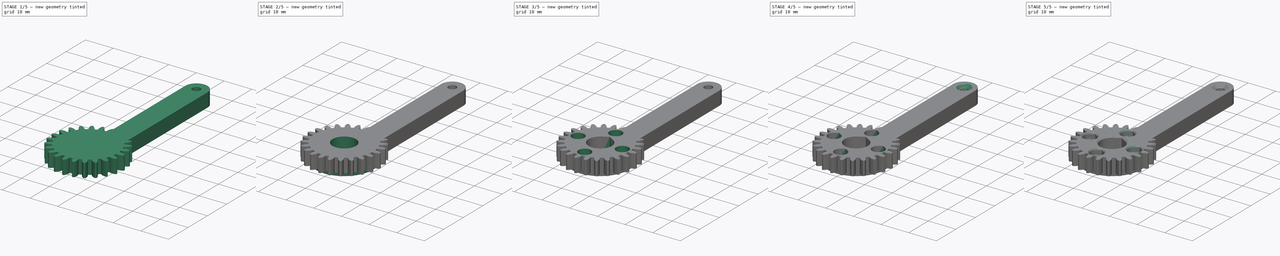
[diagram: build sequence overview — one tinted view per stage of 5, left to right]
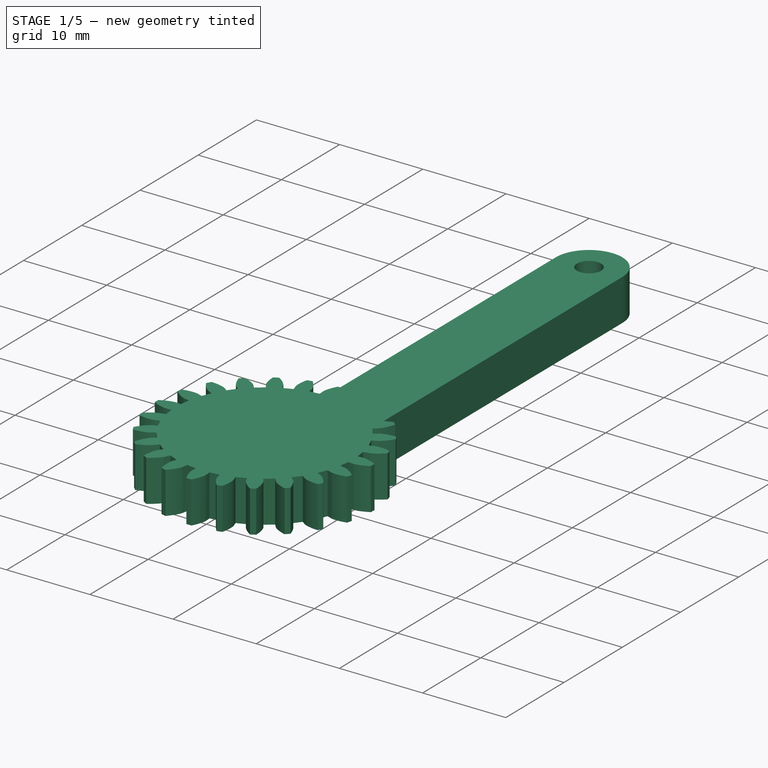
[diagram: stage 1 of 5 — iso view after this stage's code; geometry added in this stage tinted green]
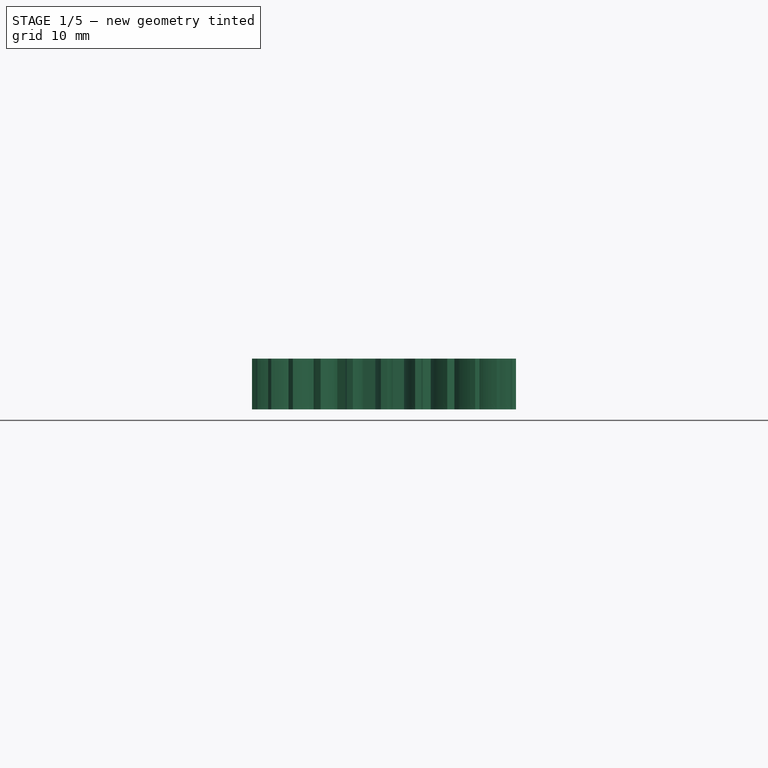
[diagram: stage 1 of 5 — front view after this stage's code; geometry added in this stage tinted green]
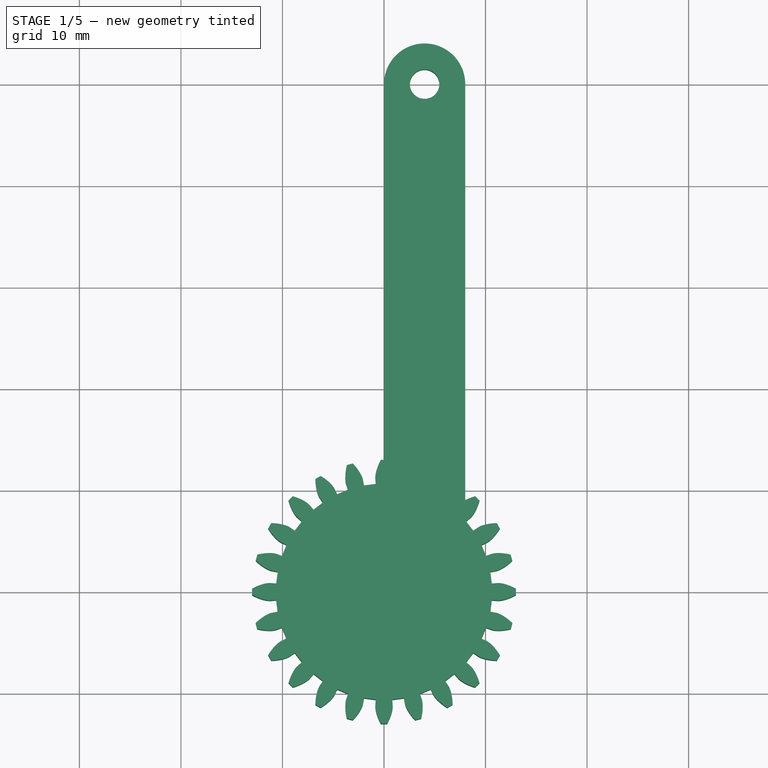
[diagram: stage 1 of 5 — top view after this stage's code; geometry added in this stage tinted green]
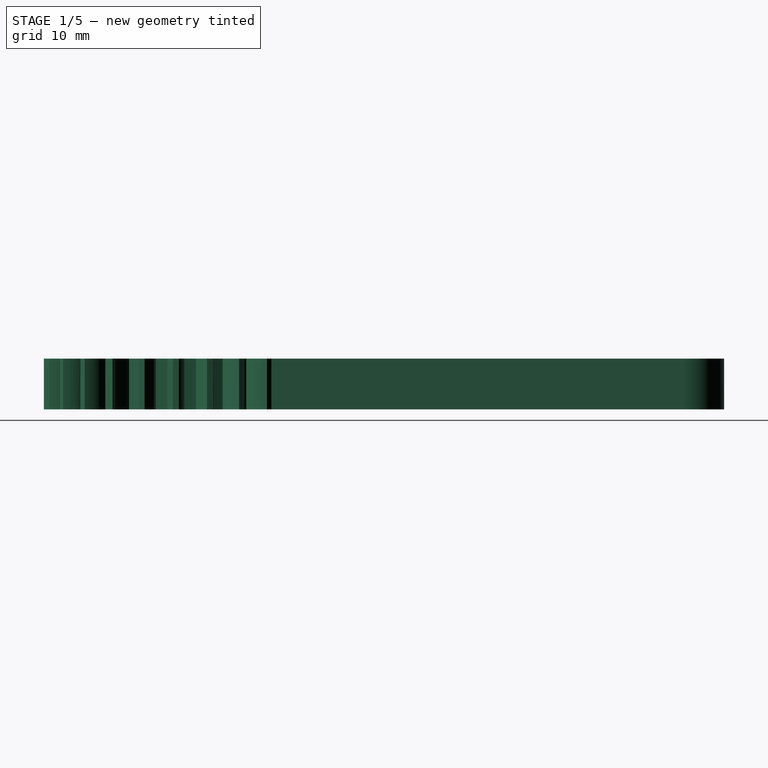
[diagram: stage 1 of 5 — right view after this stage's code; geometry added in this stage tinted green]
FCSTD DOCUMENT  (FreeCAD 1.0R39109 (Git))
Label: gear_servo_2
License: All rights reserved
LicenseURL: https://en.wikipedia.org/wiki/All_rights_reserved
objects: Sketcher::SketchObject×10, PartDesign::Chamfer×6, PartDesign::Hole×4, PartDesign::Pocket×4, PartDesign::Pad×2, Part::FeaturePython×1, PartDesign::FeatureBase×1, PartDesign::Body×1
note: 72 computed .brp shape members not serialized (recipe doc carries the construction recipe); baked Part::Feature solids carry a one-line shape summary decoded from their .brp

FEATURE [Part::FeaturePython] InvoluteGear  # WARN: FeaturePython — macro-defined, semantics opaque (R4)
  AttacherType = Attacher::AttachEngine3D
  addendum_diameter = 26
  angular_backlash = 0.498224
  axle_hole = false
  axle_holesize = 10
  backlash = 0.1
  clearance = 0.35
  double_helix = false
  head = 0
  head_fillet = 0
  height = 5
  helix_angle = 0
  module = 1
  num_teeth = 24
  numpoints = 20
  offset_hole = false
  offset_holeoffset = 10
  offset_holesize = 10
  pitch_diameter = 24
  pressure_angle = 20
  properties_from_tool = false
  reversed_backlash = false
  root_diameter = 21.3
  root_fillet = 0
  shift = 0
  simple = false
  transverse_pitch = 3.14159
  traverse_module = 1
  undercut = false
  version = 1.3.0
  expr: angular_backlash = backlash / pitch_diameter * 360 ° / pi
FEATURE [PartDesign::FeatureBase] BaseFeature
  BaseFeature = -> InvoluteGear
  Suppressed = false
FEATURE [Sketcher::SketchObject] Sketch
  ArcFitTolerance = 1e-06
  AttachmentSupport = -> [BaseFeature]
  FullyConstrained = true
  MakeInternals = false
  MapMode = 5
  Placement = pos=(0,0,5) rot=(0,0,1;0rad)
  sketch-geometry (9):
    g0: Circle [constr] CenterX=0 CenterY=0 CenterZ=0 NormalX=0 NormalY=0 NormalZ=1 AngleXU=0 Radius=12
    g1: LineSegment [constr] StartX=0 StartY=0 StartZ=0 EndX=12 EndY=0 EndZ=0
    g2: Circle [constr] CenterX=12 CenterY=0 CenterZ=0 NormalX=0 NormalY=0 NormalZ=1 AngleXU=0 Radius=8
    g3: LineSegment [constr] StartX=0 StartY=0 StartZ=0 EndX=4 EndY=0 EndZ=0
    g4: LineSegment [constr] StartX=4 StartY=0 StartZ=0 EndX=4 EndY=50 EndZ=0
    g5: ArcOfCircle CenterX=4 CenterY=0 CenterZ=0 NormalX=0 NormalY=0 NormalZ=1 AngleXU=0 Radius=4 StartAngle=3.14159 EndAngle=6.28319
    g6: ArcOfCircle CenterX=4 CenterY=50 CenterZ=0 NormalX=0 NormalY=0 NormalZ=1 AngleXU=0 Radius=4 StartAngle=0 EndAngle=3.14159
    g7: LineSegment StartX=0 StartY=-1.3e-15 StartZ=0 EndX=0 EndY=50 EndZ=0
    g8: LineSegment StartX=8 StartY=-1e-15 StartZ=0 EndX=8 EndY=50 EndZ=0
  constraints (21):
    c: Diameter(g0) = 24
    c: Coincident(g0,g-1)
    c: Coincident(g1,g0)
    c: PointOnObject(g1,g0)
    c: Horizontal(g1)
    c: Diameter(g2) = 16
    c: Coincident(g2,g1)
    c: Coincident(g3,g0)
    c: PointOnObject(g3,g2)
    c: Horizontal(g3)
    c: Distance(g4) = 50
    c: Coincident(g4,g3)
    c: Vertical(g4)
    c: Tangent(g5,g7) = 1.5708
    c: Tangent(g5,g8) = -1.5708
    c: Tangent(g6,g7) = 1.5708
    c: Tangent(g6,g8) = -1.5708
    c: Equal(g5,g6)
    c: Radius(g5) = 4
    c: Coincident(g5,g3)
    c: Coincident(g6,g4)
FEATURE [PartDesign::Pad] Pad
  BaseFeature = -> BaseFeature
  Direction = (0,0,1)
  Length = 10
  Length2 = 10
  Profile = -> Sketch
  ReferenceAxis = -> Sketch [N_Axis]
  Refine = true
  Reversed = true
  Suppressed = false
  Type = 3
  UpToFace = -> BaseFeature [Face145]
FEATURE [Sketcher::SketchObject] Sketch001
  ArcFitTolerance = 1e-06
  AttachmentSupport = -> [Pad]
  ExternalGeometry = -> [Pad]
  FullyConstrained = true
  MakeInternals = false
  MapMode = 5
  Placement = pos=(0,0,5) rot=(0,0,1;0rad)
  sketch-geometry (1):
    g0: Circle CenterX=4 CenterY=50 CenterZ=0 NormalX=0 NormalY=0 NormalZ=1 AngleXU=0 Radius=1
  constraints (2):
    c: Diameter(g0) = 2
    c: Coincident(g0,g-3)
FEATURE [PartDesign::Hole] Hole
  BaseFeature = -> Pad
  CustomThreadClearance = 0
  Depth = 25
  DepthType = 0
  Diameter = 2.9
  DrillForDepth = false
  DrillPoint = 1
  DrillPointAngle = 118
  HoleCutCountersinkAngle = 90
  HoleCutCustomValues = false
  HoleCutDepth = 0
  HoleCutDiameter = 6.1
  HoleCutType = 0
  ModelThread = false
  Profile = -> Sketch001
  Refine = true
  Suppressed = false
  Tapered = false
  TaperedAngle = 90
  TeardropAngle = 120
  TeardropRotation = 90
  ThreadClass = 0
  ThreadDepth = 25
  ThreadDepthType = 0
  ThreadDirection = 0
  ThreadFit = 0
  ThreadSize = 8
  ThreadType = 1
  Threaded = false
  UseCustomThreadClearance = false
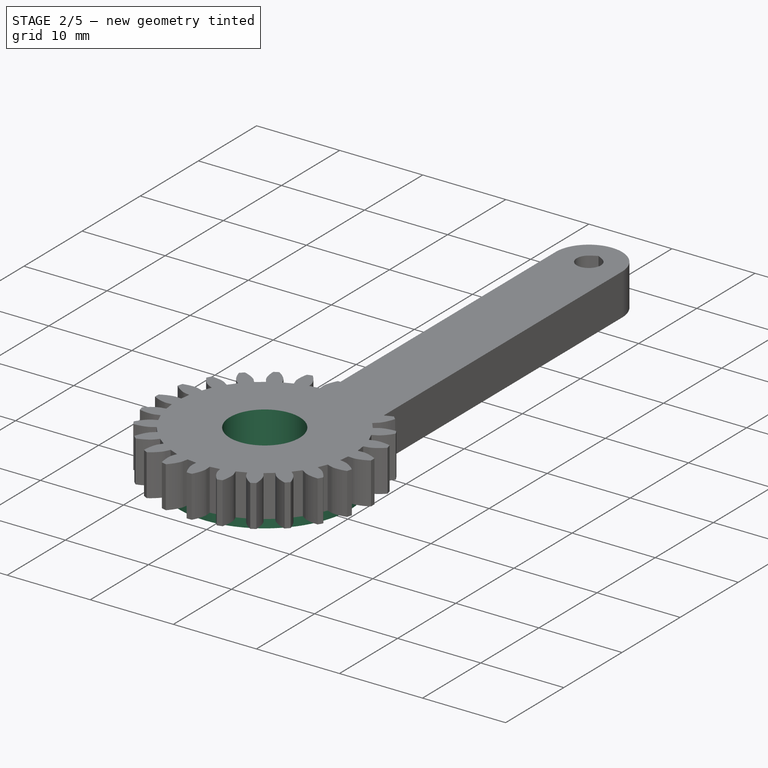
[diagram: stage 2 of 5 — iso view after this stage's code; geometry added in this stage tinted green]
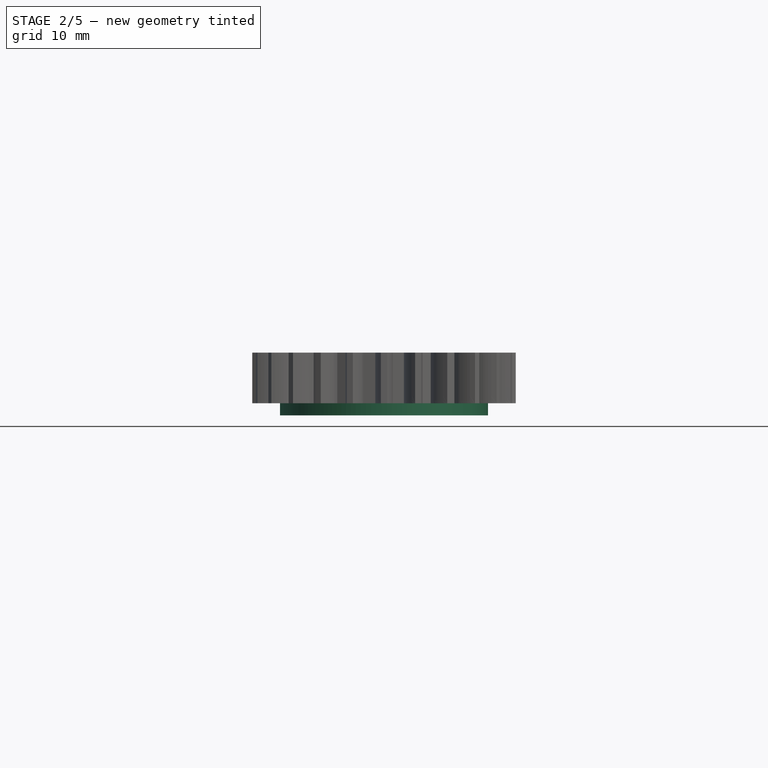
[diagram: stage 2 of 5 — front view after this stage's code; geometry added in this stage tinted green]
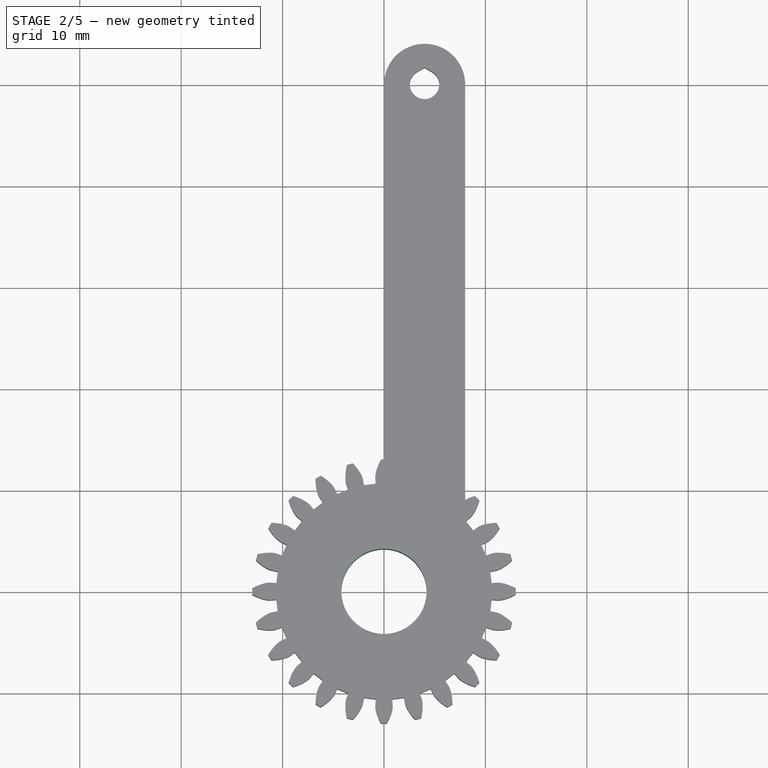
[diagram: stage 2 of 5 — top view after this stage's code; geometry added in this stage tinted green]
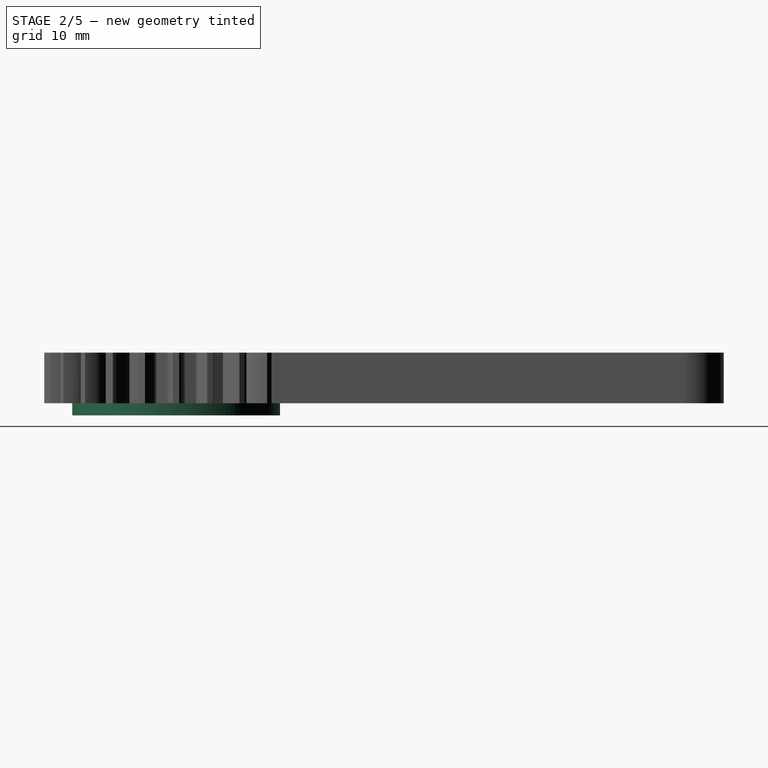
[diagram: stage 2 of 5 — right view after this stage's code; geometry added in this stage tinted green]
FEATURE [Sketcher::SketchObject] Sketch001_Teardrops
  ArcFitTolerance = 1e-06
  AttachmentSupport = -> [Sketch001]
  FullyConstrained = true
  MakeInternals = false
  MapMode = 2
  Placement = pos=(0,0,5) rot=(0,0,1;0rad)
  expr: Constraints[5] = Sketch001.Geometry[0].Center.x * 1 mm
  expr: Constraints[6] = Sketch001.Geometry[0].Center.y * 1 mm
  expr: Constraints[7] = Hole.Diameter
  expr: Constraints[8] = Hole.TeardropAngle
  expr: Constraints[9] = Hole.TeardropRotation
  sketch-geometry (4):
    g0: ArcOfCircle CenterX=4 CenterY=50 CenterZ=0 NormalX=0 NormalY=0 NormalZ=1 AngleXU=0 Radius=1.45 StartAngle=2.0944 EndAngle=7.33038
    g1: LineSegment StartX=3.275 StartY=51.2557 StartZ=0 EndX=4 EndY=51.6743 EndZ=0
    g2: LineSegment StartX=4.725 StartY=51.2557 StartZ=0 EndX=4 EndY=51.6743 EndZ=0
    g3: LineSegment [constr] StartX=4 StartY=50 StartZ=0 EndX=4 EndY=51.6743 EndZ=0
  constraints (10):
    c: Coincident(g1,g2)
    c: Coincident(g1,g3)
    c: Coincident(g0,g3)
    c: Tangent(g0,g1) = 1.5708
    c: Tangent(g0,g2) = -1.5708
    c: DistanceX(g0) = 4
    c: DistanceY(g0) = 50
    c: Diameter(g0) = 2.9
    c: Angle(g1,g2) = 2.0944
    c: Angle(g3) = 1.5708
FEATURE [PartDesign::Pocket] Hole_Teardrops
  BaseFeature = -> Hole
  Direction = (0,0,-1)
  Length = 25
  Length2 = 5
  Profile = -> Sketch001_Teardrops
  ReferenceAxis = -> Sketch001_Teardrops [N_Axis]
  Refine = true
  Suppressed = false
  Type = 0
  expr: Length = Hole.Depth
  expr: Type = Hole.DepthType
FEATURE [Sketcher::SketchObject] Sketch002
  ArcFitTolerance = 1e-06
  AttachmentSupport = -> [Hole_Teardrops]
  FullyConstrained = true
  MakeInternals = false
  MapMode = 5
  Placement = pos=(0,0,0) rot=(1,0,0;3.14159rad)
  sketch-geometry (1):
    g0: Circle CenterX=0 CenterY=0 CenterZ=0 NormalX=0 NormalY=0 NormalZ=1 AngleXU=0 Radius=10.25
  constraints (2):
    c: Diameter(g0) = 20.5
    c: Coincident(g0,g-1)
FEATURE [PartDesign::Pad] Pad001
  BaseFeature = -> Hole_Teardrops
  Direction = (0,0,-1)
  Length = 1.2
  Length2 = 10
  Profile = -> Sketch002
  ReferenceAxis = -> Sketch002 [N_Axis]
  Refine = true
  Suppressed = false
  Type = 0
FEATURE [Sketcher::SketchObject] Sketch003
  ArcFitTolerance = 1e-06
  AttachmentSupport = -> [Pad001]
  FullyConstrained = true
  MakeInternals = false
  MapMode = 5
  Placement = pos=(0,0,5) rot=(0,0,1;0rad)
  sketch-geometry (1):
    g0: Circle CenterX=0 CenterY=0 CenterZ=0 NormalX=0 NormalY=0 NormalZ=1 AngleXU=0 Radius=4
  constraints (2):
    c: Diameter(g0) = 8
    c: Coincident(g0,g-1)
FEATURE [PartDesign::Hole] Hole001
  BaseFeature = -> Pad001
  CustomThreadClearance = 0
  Depth = 25
  DepthType = 0
  Diameter = 8.4
  DrillForDepth = false
  DrillPoint = 1
  DrillPointAngle = 118
  HoleCutCountersinkAngle = 90
  HoleCutCustomValues = false
  HoleCutDepth = 0
  HoleCutDiameter = 6.1
  HoleCutType = 0
  ModelThread = false
  Profile = -> Sketch003
  Refine = true
  Suppressed = false
  Tapered = false
  TaperedAngle = 90
  TeardropAngle = 120
  TeardropRotation = 90
  ThreadClass = 0
  ThreadDepth = 25
  ThreadDepthType = 0
  ThreadDirection = 0
  ThreadFit = 1
  ThreadSize = 16
  ThreadType = 1
  Threaded = false
  UseCustomThreadClearance = false
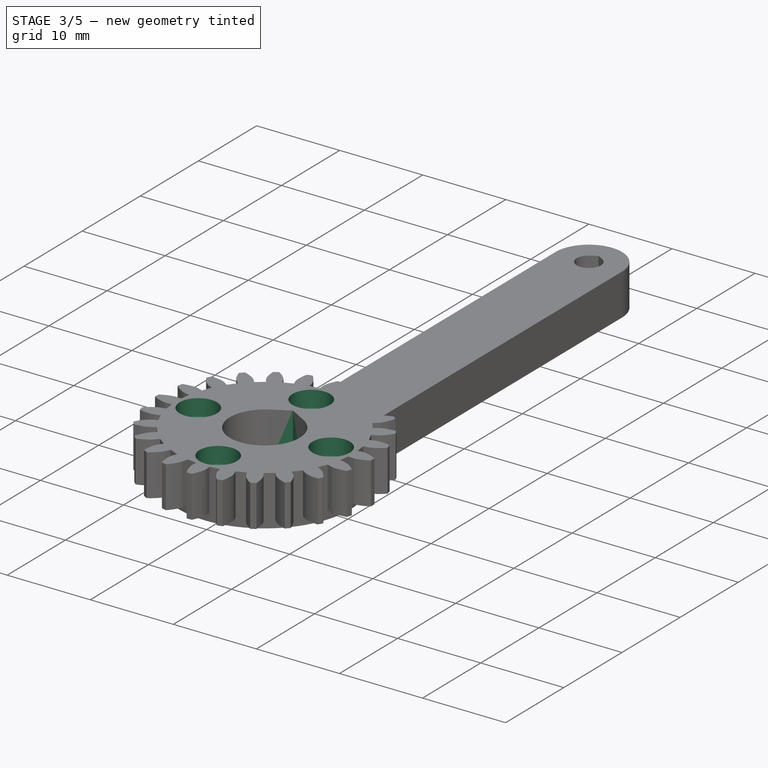
[diagram: stage 3 of 5 — iso view after this stage's code; geometry added in this stage tinted green]
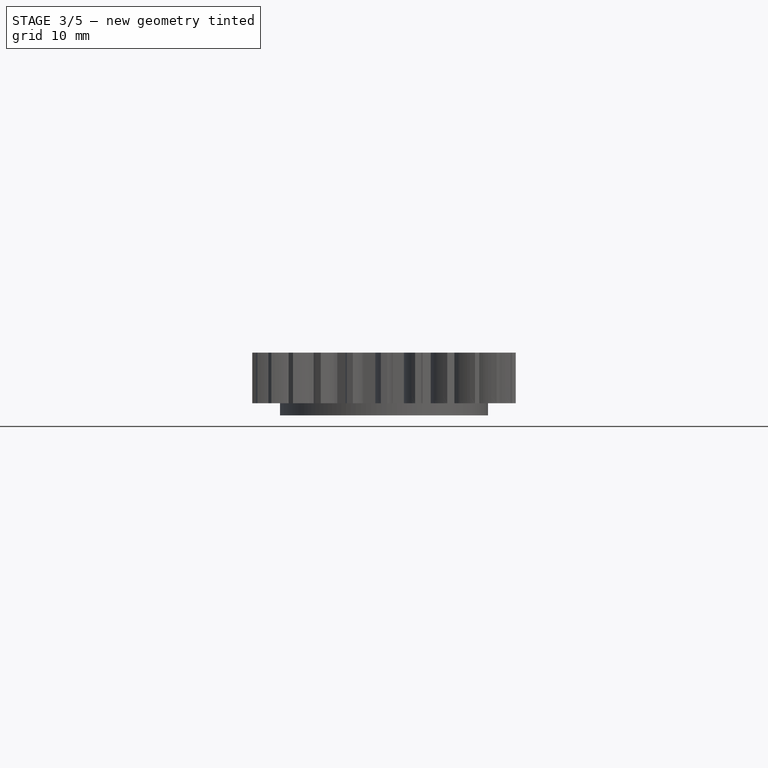
[diagram: stage 3 of 5 — front view after this stage's code; geometry added in this stage tinted green]
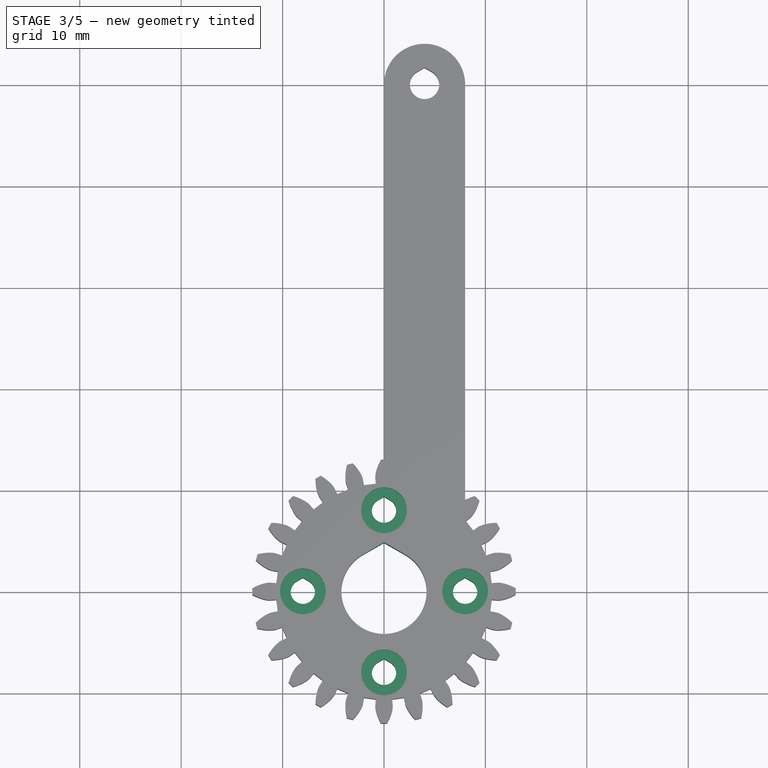
[diagram: stage 3 of 5 — top view after this stage's code; geometry added in this stage tinted green]
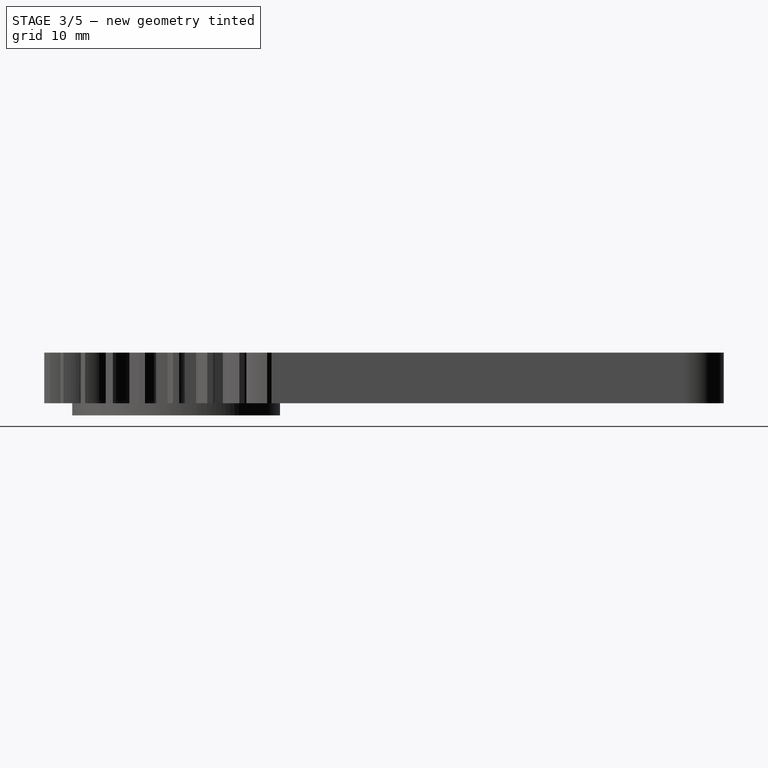
[diagram: stage 3 of 5 — right view after this stage's code; geometry added in this stage tinted green]
FEATURE [Sketcher::SketchObject] Sketch003_Teardrops
  ArcFitTolerance = 1e-06
  AttachmentSupport = -> [Sketch003]
  FullyConstrained = true
  MakeInternals = false
  MapMode = 2
  Placement = pos=(0,0,5) rot=(0,0,1;0rad)
  expr: Constraints[5] = Sketch003.Geometry[0].Center.x * 1 mm
  expr: Constraints[6] = Sketch003.Geometry[0].Center.y * 1 mm
  expr: Constraints[7] = Hole001.Diameter
  expr: Constraints[8] = Hole001.TeardropAngle
  expr: Constraints[9] = Hole001.TeardropRotation
  sketch-geometry (4):
    g0: ArcOfCircle CenterX=0 CenterY=0 CenterZ=0 NormalX=0 NormalY=0 NormalZ=1 AngleXU=0 Radius=4.2 StartAngle=2.0944 EndAngle=7.33038
    g1: LineSegment StartX=-2.1 StartY=3.63731 StartZ=0 EndX=4e-16 EndY=4.84974 EndZ=0
    g2: LineSegment StartX=2.1 StartY=3.63731 StartZ=0 EndX=4e-16 EndY=4.84974 EndZ=0
    g3: LineSegment [constr] StartX=0 StartY=0 StartZ=0 EndX=4e-16 EndY=4.84974 EndZ=0
  constraints (10):
    c: Coincident(g1,g2)
    c: Coincident(g1,g3)
    c: Coincident(g0,g3)
    c: Tangent(g0,g1) = 1.5708
    c: Tangent(g0,g2) = -1.5708
    c: DistanceX(g0) = 0
    c: DistanceY(g0) = 0
    c: Diameter(g0) = 8.4
    c: Angle(g1,g2) = 2.0944
    c: Angle(g3) = 1.5708
FEATURE [PartDesign::Pocket] Hole001_Teardrops
  BaseFeature = -> Hole001
  Direction = (0,0,-1)
  Length = 25
  Length2 = 5
  Profile = -> Sketch003_Teardrops
  ReferenceAxis = -> Sketch003_Teardrops [N_Axis]
  Refine = true
  Suppressed = false
  Type = 0
  expr: Length = Hole001.Depth
  expr: Type = Hole001.DepthType
FEATURE [Sketcher::SketchObject] Sketch004
  ArcFitTolerance = 1e-06
  AttachmentSupport = -> [Hole001_Teardrops]
  FullyConstrained = false
  MakeInternals = false
  MapMode = 5
  Placement = pos=(0,0,5) rot=(0,0,1;0rad)
  sketch-geometry (6):
    g0: Circle [constr] CenterX=0 CenterY=0 CenterZ=0 NormalX=0 NormalY=0 NormalZ=1 AngleXU=0 Radius=8
    g1: LineSegment [constr] StartX=0 StartY=0 StartZ=0 EndX=0 EndY=8 EndZ=0
    g2: Circle CenterX=0 CenterY=8 CenterZ=0 NormalX=0 NormalY=0 NormalZ=1 AngleXU=0 Radius=1
    g3: Circle CenterX=8 CenterY=0 CenterZ=0 NormalX=0 NormalY=0 NormalZ=1 AngleXU=0 Radius=1
    g4: Circle CenterX=0 CenterY=-8 CenterZ=0 NormalX=0 NormalY=0 NormalZ=1 AngleXU=0 Radius=1
    g5: Circle CenterX=-8 CenterY=0 CenterZ=0 NormalX=0 NormalY=0 NormalZ=1 AngleXU=0 Radius=1
  constraints (10):
    c: Diameter(g0) = 16
    c: Coincident(g0,g-1)
    c: Coincident(g1,g0)
    c: PointOnObject(g1,g0)
    c: Vertical(g1)
    c: Diameter(g2) = 2
    c: Coincident(g2,g1)
    c: Diameter(g3) = 2
    c: Diameter(g4) = 2
    c: Diameter(g5) = 2
FEATURE [PartDesign::Hole] Hole002
  BaseFeature = -> Hole001_Teardrops
  CustomThreadClearance = 0
  Depth = 25
  DepthType = 0
  Diameter = 2.4
  DrillForDepth = false
  DrillPoint = 1
  DrillPointAngle = 118
  HoleCutCountersinkAngle = 90
  HoleCutCustomValues = false
  HoleCutDepth = 0
  HoleCutDiameter = 6.1
  HoleCutType = 0
  ModelThread = false
  Profile = -> Sketch004
  Refine = true
  Suppressed = false
  Tapered = false
  TaperedAngle = 90
  TeardropAngle = 120
  TeardropRotation = 90
  ThreadClass = 0
  ThreadDepth = 25
  ThreadDepthType = 0
  ThreadDirection = 0
  ThreadFit = 0
  ThreadSize = 6
  ThreadType = 1
  Threaded = false
  UseCustomThreadClearance = false
FEATURE [Sketcher::SketchObject] Sketch004_Teardrops
  ArcFitTolerance = 1e-06
  AttachmentSupport = -> [Sketch004]
  FullyConstrained = true
  MakeInternals = false
  MapMode = 2
  Placement = pos=(0,0,5) rot=(0,0,1;0rad)
  expr: Constraints[15] = Sketch004.Geometry[3].Center.x * 1 mm
  expr: Constraints[16] = Sketch004.Geometry[3].Center.y * 1 mm
  expr: Constraints[17] = Hole002.Diameter
  expr: Constraints[18] = Hole002.TeardropAngle
  expr: Constraints[19] = Hole002.TeardropRotation
  expr: Constraints[25] = Sketch004.Geometry[4].Center.x * 1 mm
  expr: Constraints[26] = Sketch004.Geometry[4].Center.y * 1 mm
  expr: Constraints[27] = Hole002.Diameter
  expr: Constraints[28] = Hole002.TeardropAngle
  expr: Constraints[29] = Hole002.TeardropRotation
  expr: Constraints[35] = Sketch004.Geometry[5].Center.x * 1 mm
  expr: Constraints[36] = Sketch004.Geometry[5].Center.y * 1 mm
  expr: Constraints[37] = Hole002.Diameter
  expr: Constraints[38] = Hole002.TeardropAngle
  expr: Constraints[39] = Hole002.TeardropRotation
  expr: Constraints[5] = Sketch004.Geometry[2].Center.x * 1 mm
  expr: Constraints[6] = Sketch004.Geometry[2].Center.y * 1 mm
  expr: Constraints[7] = Hole002.Diameter
  expr: Constraints[8] = Hole002.TeardropAngle
  expr: Constraints[9] = Hole002.TeardropRotation
  sketch-geometry (16):
    g0: ArcOfCircle CenterX=0 CenterY=8 CenterZ=0 NormalX=0 NormalY=0 NormalZ=1 AngleXU=0 Radius=1.2 StartAngle=2.0944 EndAngle=7.33038
    g1: LineSegment StartX=-0.6 StartY=9.03923 StartZ=0 EndX=-7.37e-14 EndY=9.38564 EndZ=0
    g2: LineSegment StartX=0.6 StartY=9.03923 StartZ=0 EndX=-7.37e-14 EndY=9.38564 EndZ=0
    g3: LineSegment [constr] StartX=0 StartY=8 StartZ=0 EndX=-7.37e-14 EndY=9.38564 EndZ=0
    g4: ArcOfCircle CenterX=8 CenterY=0 CenterZ=0 NormalX=0 NormalY=0 NormalZ=1 AngleXU=0 Radius=1.2 StartAngle=2.0944 EndAngle=7.33038
    g5: LineSegment StartX=7.4 StartY=1.03923 StartZ=0 EndX=8 EndY=1.38564 EndZ=0
    g6: LineSegment StartX=8.6 StartY=1.03923 StartZ=0 EndX=8 EndY=1.38564 EndZ=0
    g7: LineSegment [constr] StartX=8 StartY=0 StartZ=0 EndX=8 EndY=1.38564 EndZ=0
    g8: ArcOfCircle CenterX=0 CenterY=-8 CenterZ=0 NormalX=0 NormalY=0 NormalZ=1 AngleXU=0 Radius=1.2 StartAngle=2.0944 EndAngle=7.33038
    g9: LineSegment StartX=-0.6 StartY=-6.96077 StartZ=0 EndX=1e-16 EndY=-6.61436 EndZ=0
    g10: LineSegment StartX=0.6 StartY=-6.96077 StartZ=0 EndX=1e-16 EndY=-6.61436 EndZ=0
    g11: LineSegment [constr] StartX=0 StartY=-8 StartZ=0 EndX=1e-16 EndY=-6.61436 EndZ=0
    g12: ArcOfCircle CenterX=-8 CenterY=0 CenterZ=0 NormalX=0 NormalY=0 NormalZ=1 AngleXU=0 Radius=1.2 StartAngle=2.0944 EndAngle=7.33038
    g13: LineSegment StartX=-8.6 StartY=1.03923 StartZ=0 EndX=-8 EndY=1.38564 EndZ=0
    g14: LineSegment StartX=-7.4 StartY=1.03923 StartZ=0 EndX=-8 EndY=1.38564 EndZ=0
    g15: LineSegment [constr] StartX=-8 StartY=0 StartZ=0 EndX=-8 EndY=1.38564 EndZ=0
  constraints (40):
    c: Coincident(g1,g2)
    c: Coincident(g1,g3)
    c: Coincident(g0,g3)
    c: Tangent(g0,g1) = 1.5708
    c: Tangent(g0,g2) = -1.5708
    c: DistanceX(g0) = 0
    c: DistanceY(g0) = 8
    c: Diameter(g0) = 2.4
    c: Angle(g1,g2) = 2.0944
    c: Angle(g3) = 1.5708
    c: Coincident(g5,g6)
    c: Coincident(g5,g7)
    c: Coincident(g4,g7)
    c: Tangent(g4,g5) = 1.5708
    c: Tangent(g4,g6) = -1.5708
    c: DistanceX(g4) = 8
    c: DistanceY(g4) = 0
    c: Diameter(g4) = 2.4
    c: Angle(g5,g6) = 2.0944
    c: Angle(g7) = 1.5708
    c: Coincident(g9,g10)
    c: Coincident(g9,g11)
    c: Coincident(g8,g11)
    c: Tangent(g8,g9) = 1.5708
    c: Tangent(g8,g10) = -1.5708
    c: DistanceX(g8) = 0
    c: DistanceY(g8) = -8
    c: Diameter(g8) = 2.4
    c: Angle(g9,g10) = 2.0944
    c: Angle(g11) = 1.5708
    c: Coincident(g13,g14)
    c: Coincident(g13,g15)
    c: Coincident(g12,g15)
    c: Tangent(g12,g13) = 1.5708
    c: Tangent(g12,g14) = -1.5708
    c: DistanceX(g12) = -8
    c: DistanceY(g12) = 0
    c: Diameter(g12) = 2.4
    c: Angle(g13,g14) = 2.0944
    c: Angle(g15) = 1.5708
FEATURE [PartDesign::Pocket] Hole002_Teardrops
  BaseFeature = -> Hole002
  Direction = (0,0,-1)
  Length = 25
  Length2 = 5
  Profile = -> Sketch004_Teardrops
  ReferenceAxis = -> Sketch004_Teardrops [N_Axis]
  Refine = true
  Suppressed = false
  Type = 0
  expr: Length = Hole002.Depth
  expr: Type = Hole002.DepthType
FEATURE [Sketcher::SketchObject] Sketch005
  ArcFitTolerance = 1e-06
  AttachmentSupport = -> [Hole002_Teardrops]
  ExternalGeometry = -> [Hole002_Teardrops]
  FullyConstrained = false
  MakeInternals = false
  MapMode = 5
  Placement = pos=(0,0,5) rot=(0,0,1;0rad)
  sketch-geometry (4):
    g0: Circle CenterX=0 CenterY=8 CenterZ=0 NormalX=0 NormalY=0 NormalZ=1 AngleXU=0 Radius=2.25
    g1: Circle CenterX=8 CenterY=0 CenterZ=0 NormalX=0 NormalY=0 NormalZ=1 AngleXU=0 Radius=2.25
    g2: Circle CenterX=0 CenterY=-8 CenterZ=0 NormalX=0 NormalY=0 NormalZ=1 AngleXU=0 Radius=2.25
    g3: Circle CenterX=-8 CenterY=0 CenterZ=0 NormalX=0 NormalY=0 NormalZ=1 AngleXU=0 Radius=2.25
  constraints (5):
    c: Diameter(g0) = 4.5
    c: Coincident(g0,g-3)
    c: Diameter(g1) = 4.5
    c: Diameter(g2) = 4.5
    c: Diameter(g3) = 4.5
FEATURE [PartDesign::Hole] Hole003
  BaseFeature = -> Hole002_Teardrops
  CustomThreadClearance = 0
  Depth = 2
  DepthType = 0
  Diameter = 4.5
  DrillForDepth = false
  DrillPoint = 0
  DrillPointAngle = 118
  HoleCutCountersinkAngle = 90
  HoleCutCustomValues = false
  HoleCutDepth = 0
  HoleCutDiameter = 6.1
  HoleCutType = 0
  ModelThread = false
  Profile = -> Sketch005
  Refine = true
  Suppressed = false
  Tapered = false
  TaperedAngle = 90
  TeardropAngle = 120
  TeardropRotation = 90
  ThreadClass = 0
  ThreadDepth = 2
  ThreadDepthType = 0
  ThreadDirection = 0
  ThreadFit = 0
  ThreadSize = 0
  ThreadType = 0
  Threaded = false
  UseCustomThreadClearance = false
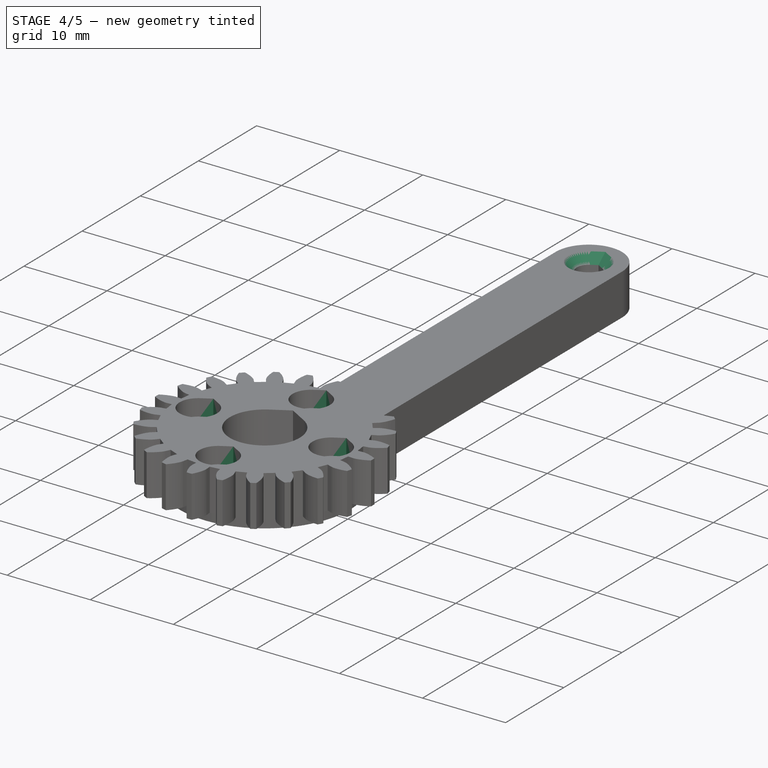
[diagram: stage 4 of 5 — iso view after this stage's code; geometry added in this stage tinted green]
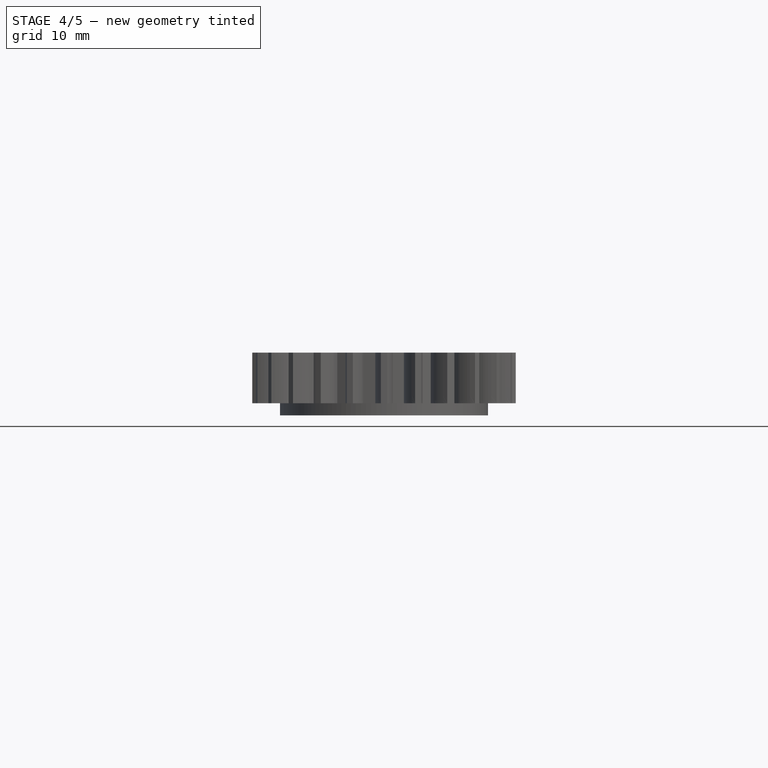
[diagram: stage 4 of 5 — front view after this stage's code; geometry added in this stage tinted green]
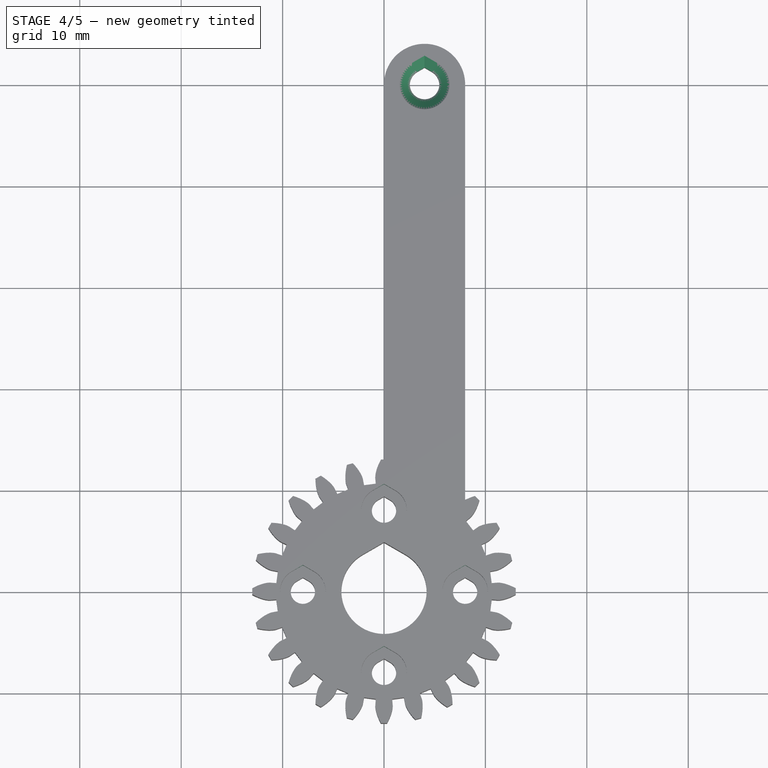
[diagram: stage 4 of 5 — top view after this stage's code; geometry added in this stage tinted green]
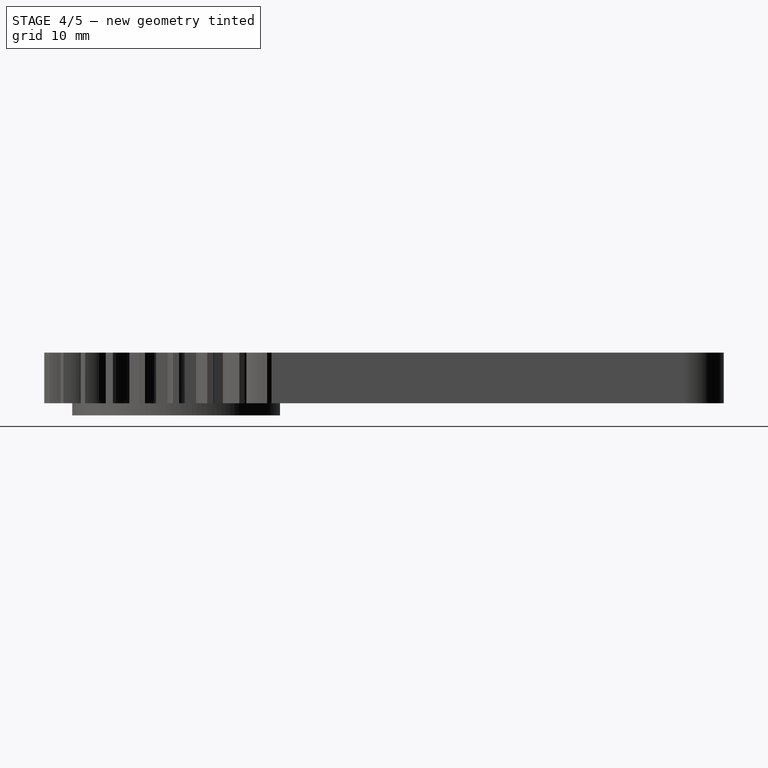
[diagram: stage 4 of 5 — right view after this stage's code; geometry added in this stage tinted green]
FEATURE [Sketcher::SketchObject] Sketch005_Teardrops
  ArcFitTolerance = 1e-06
  AttachmentSupport = -> [Sketch005]
  FullyConstrained = true
  MakeInternals = false
  MapMode = 2
  Placement = pos=(0,0,5) rot=(0,0,1;0rad)
  expr: Constraints[15] = Sketch005.Geometry[1].Center.x * 1 mm
  expr: Constraints[16] = Sketch005.Geometry[1].Center.y * 1 mm
  expr: Constraints[17] = Hole003.Diameter
  expr: Constraints[18] = Hole003.TeardropAngle
  expr: Constraints[19] = Hole003.TeardropRotation
  expr: Constraints[25] = Sketch005.Geometry[2].Center.x * 1 mm
  expr: Constraints[26] = Sketch005.Geometry[2].Center.y * 1 mm
  expr: Constraints[27] = Hole003.Diameter
  expr: Constraints[28] = Hole003.TeardropAngle
  expr: Constraints[29] = Hole003.TeardropRotation
  expr: Constraints[35] = Sketch005.Geometry[3].Center.x * 1 mm
  expr: Constraints[36] = Sketch005.Geometry[3].Center.y * 1 mm
  expr: Constraints[37] = Hole003.Diameter
  expr: Constraints[38] = Hole003.TeardropAngle
  expr: Constraints[39] = Hole003.TeardropRotation
  expr: Constraints[5] = Sketch005.Geometry[0].Center.x * 1 mm
  expr: Constraints[6] = Sketch005.Geometry[0].Center.y * 1 mm
  expr: Constraints[7] = Hole003.Diameter
  expr: Constraints[8] = Hole003.TeardropAngle
  expr: Constraints[9] = Hole003.TeardropRotation
  sketch-geometry (16):
    g0: ArcOfCircle CenterX=0 CenterY=8 CenterZ=0 NormalX=0 NormalY=0 NormalZ=1 AngleXU=0 Radius=2.25 StartAngle=2.0944 EndAngle=7.33038
    g1: LineSegment StartX=-1.125 StartY=9.94856 StartZ=0 EndX=2e-16 EndY=10.5981 EndZ=0
    g2: LineSegment StartX=1.125 StartY=9.94856 StartZ=0 EndX=2e-16 EndY=10.5981 EndZ=0
    g3: LineSegment [constr] StartX=0 StartY=8 StartZ=0 EndX=2e-16 EndY=10.5981 EndZ=0
    g4: ArcOfCircle CenterX=8 CenterY=0 CenterZ=0 NormalX=0 NormalY=0 NormalZ=1 AngleXU=0 Radius=2.25 StartAngle=2.0944 EndAngle=7.33038
    g5: LineSegment StartX=6.875 StartY=1.94856 StartZ=0 EndX=8 EndY=2.59808 EndZ=0
    g6: LineSegment StartX=9.125 StartY=1.94856 StartZ=0 EndX=8 EndY=2.59808 EndZ=0
    g7: LineSegment [constr] StartX=8 StartY=0 StartZ=0 EndX=8 EndY=2.59808 EndZ=0
    g8: ArcOfCircle CenterX=0 CenterY=-8 CenterZ=0 NormalX=0 NormalY=0 NormalZ=1 AngleXU=0 Radius=2.25 StartAngle=2.0944 EndAngle=7.33038
    g9: LineSegment StartX=-1.125 StartY=-6.05144 StartZ=0 EndX=2e-16 EndY=-5.40192 EndZ=0
    g10: LineSegment StartX=1.125 StartY=-6.05144 StartZ=0 EndX=2e-16 EndY=-5.40192 EndZ=0
    g11: LineSegment [constr] StartX=0 StartY=-8 StartZ=0 EndX=2e-16 EndY=-5.40192 EndZ=0
    g12: ArcOfCircle CenterX=-8 CenterY=0 CenterZ=0 NormalX=0 NormalY=0 NormalZ=1 AngleXU=0 Radius=2.25 StartAngle=2.0944 EndAngle=7.33038
    g13: LineSegment StartX=-9.125 StartY=1.94856 StartZ=0 EndX=-8 EndY=2.59808 EndZ=0
    g14: LineSegment StartX=-6.875 StartY=1.94856 StartZ=0 EndX=-8 EndY=2.59808 EndZ=0
    g15: LineSegment [constr] StartX=-8 StartY=0 StartZ=0 EndX=-8 EndY=2.59808 EndZ=0
  constraints (40):
    c: Coincident(g1,g2)
    c: Coincident(g1,g3)
    c: Coincident(g0,g3)
    c: Tangent(g0,g1) = 1.5708
    c: Tangent(g0,g2) = -1.5708
    c: DistanceX(g0) = 0
    c: DistanceY(g0) = 8
    c: Diameter(g0) = 4.5
    c: Angle(g1,g2) = 2.0944
    c: Angle(g3) = 1.5708
    c: Coincident(g5,g6)
    c: Coincident(g5,g7)
    c: Coincident(g4,g7)
    c: Tangent(g4,g5) = 1.5708
    c: Tangent(g4,g6) = -1.5708
    c: DistanceX(g4) = 8
    c: DistanceY(g4) = 0
    c: Diameter(g4) = 4.5
    c: Angle(g5,g6) = 2.0944
    c: Angle(g7) = 1.5708
    c: Coincident(g9,g10)
    c: Coincident(g9,g11)
    c: Coincident(g8,g11)
    c: Tangent(g8,g9) = 1.5708
    c: Tangent(g8,g10) = -1.5708
    c: DistanceX(g8) = 0
    c: DistanceY(g8) = -8
    c: Diameter(g8) = 4.5
    c: Angle(g9,g10) = 2.0944
    c: Angle(g11) = 1.5708
    c: Coincident(g13,g14)
    c: Coincident(g13,g15)
    c: Coincident(g12,g15)
    c: Tangent(g12,g13) = 1.5708
    c: Tangent(g12,g14) = -1.5708
    c: DistanceX(g12) = -8
    c: DistanceY(g12) = 0
    c: Diameter(g12) = 4.5
    c: Angle(g13,g14) = 2.0944
    c: Angle(g15) = 1.5708
FEATURE [PartDesign::Pocket] Hole003_Teardrops
  BaseFeature = -> Hole003
  Direction = (0,0,-1)
  Length = 2
  Length2 = 5
  Profile = -> Sketch005_Teardrops
  ReferenceAxis = -> Sketch005_Teardrops [N_Axis]
  Refine = true
  Suppressed = false
  Type = 0
  expr: Length = Hole003.Depth
  expr: Type = Hole003.DepthType
FEATURE [PartDesign::Chamfer] Chamfer
  Angle = 45
  Base = -> Hole003_Teardrops [Edge293,Edge140]
  BaseFeature = -> Hole003_Teardrops
  ChamferType = 0
  FlipDirection = false
  Refine = true
  Size = 1
  Size2 = 1
  SupportTransform = false
  Suppressed = false
  UseAllEdges = false
FEATURE [PartDesign::Chamfer] Chamfer001
  Angle = 45
  Base = -> Chamfer [Edge454]
  BaseFeature = -> Chamfer
  ChamferType = 0
  FlipDirection = false
  Refine = true
  Size = 1
  Size2 = 1
  SupportTransform = false
  Suppressed = false
  UseAllEdges = false
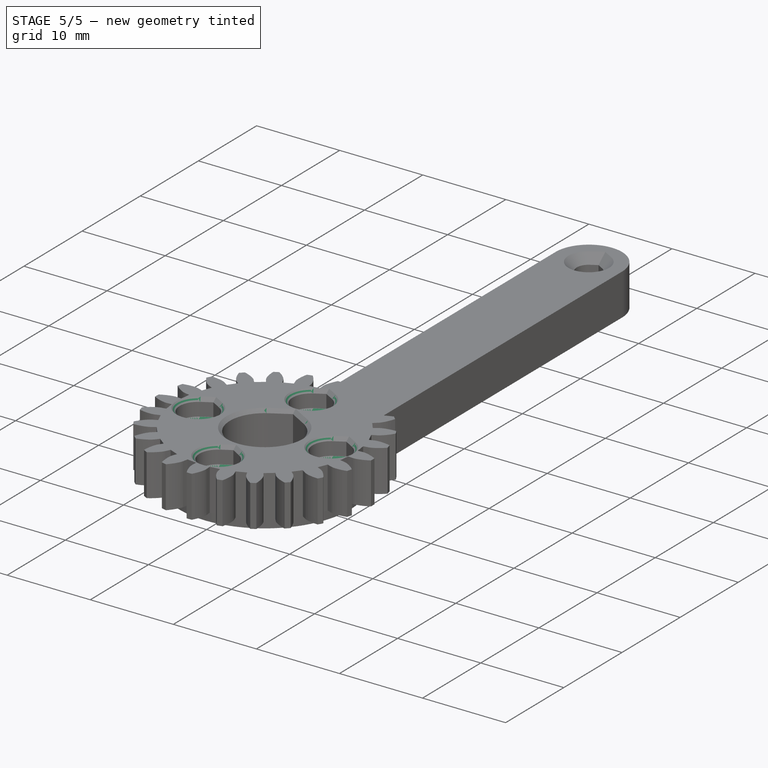
[diagram: stage 5 of 5 — iso view after this stage's code; geometry added in this stage tinted green]
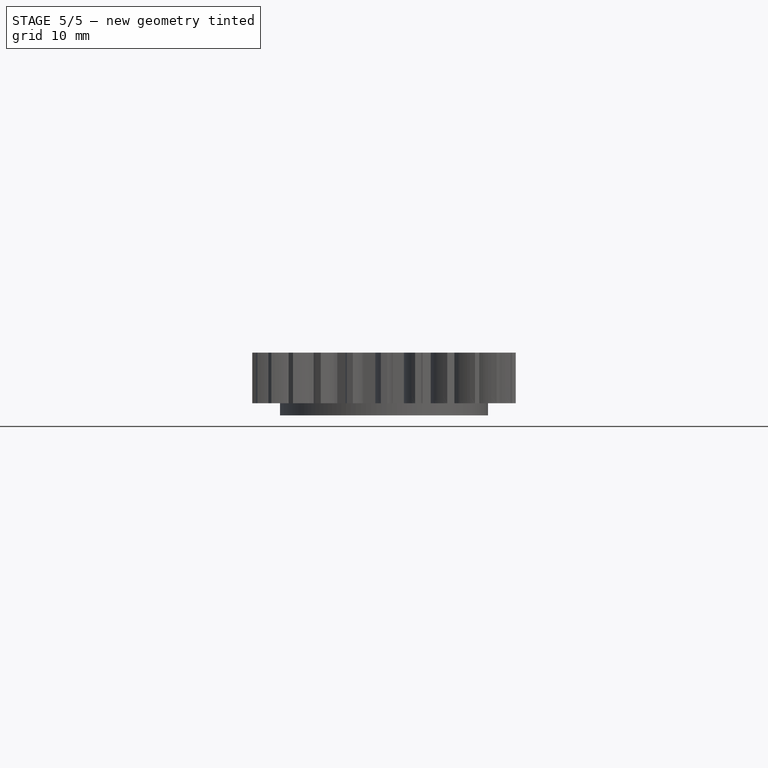
[diagram: stage 5 of 5 — front view after this stage's code; geometry added in this stage tinted green]
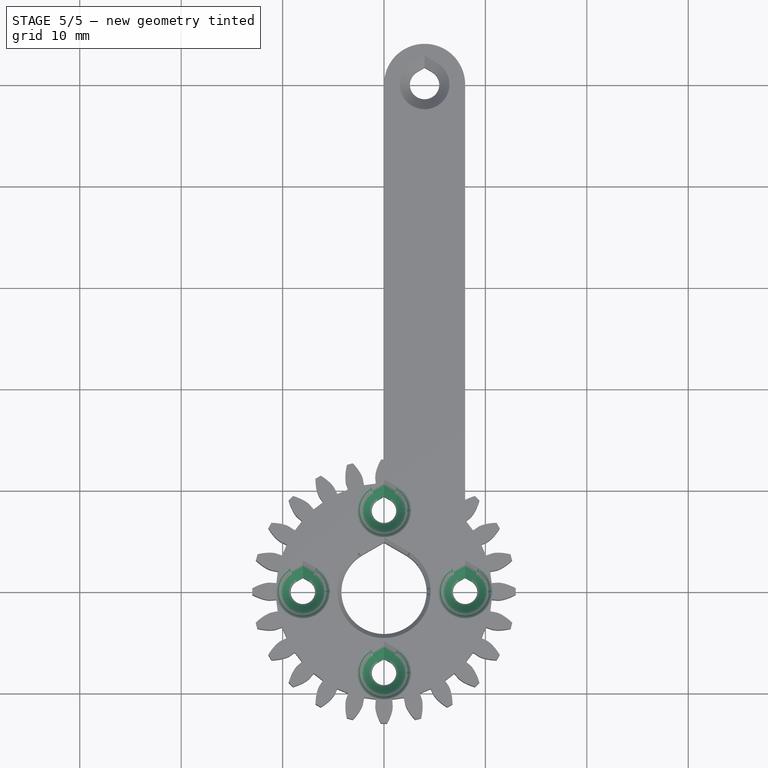
[diagram: stage 5 of 5 — top view after this stage's code; geometry added in this stage tinted green]
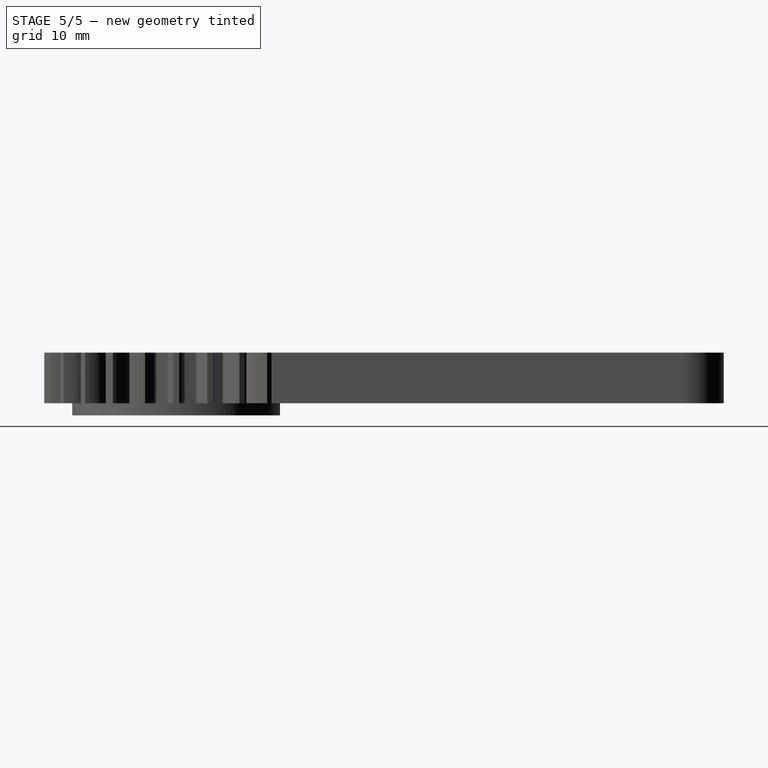
[diagram: stage 5 of 5 — right view after this stage's code; geometry added in this stage tinted green]
FEATURE [PartDesign::Chamfer] Chamfer002
  Angle = 45
  Base = -> Chamfer001 [Edge39,Edge45,Edge33,Edge51]
  BaseFeature = -> Chamfer001
  ChamferType = 0
  FlipDirection = false
  Refine = true
  Size = 1
  Size2 = 1
  SupportTransform = false
  Suppressed = false
  UseAllEdges = false
FEATURE [PartDesign::Chamfer] Chamfer003
  Angle = 45
  Base = -> Chamfer002 [Edge29,Edge25,Edge5,Edge21]
  BaseFeature = -> Chamfer002
  ChamferType = 0
  FlipDirection = false
  Refine = true
  Size = 0.6
  Size2 = 1
  SupportTransform = false
  Suppressed = false
  UseAllEdges = false
FEATURE [PartDesign::Chamfer] Chamfer004
  Angle = 45
  Base = -> Chamfer003 [Edge393,Edge81,Edge389,Edge385]
  BaseFeature = -> Chamfer003
  ChamferType = 0
  FlipDirection = false
  Refine = true
  Size = 0.4
  Size2 = 1
  SupportTransform = false
  Suppressed = false
  UseAllEdges = false
FEATURE [PartDesign::Chamfer] Chamfer005
  Angle = 45
  Base = -> Chamfer004 [Edge162]
  BaseFeature = -> Chamfer004
  ChamferType = 0
  FlipDirection = false
  Refine = true
  Size = 0.4
  Size2 = 1
  SupportTransform = false
  Suppressed = false
  UseAllEdges = false
FEATURE [PartDesign::Body] Body
  AllowCompound = false
  BaseFeature = -> InvoluteGear
  Group = -> [BaseFeature,Sketch,Pad,Sketch001,Hole,Sketch001_Teardrops,Hole_Teardrops,Sketch002,Pad001,Sketch003,Hole001,Sketch003_Teardrops,Hole001_Teardrops,Sketch004,Hole002,Sketch004_Teardrops,Hole002_Teardrops,Sketch005,Hole003,Sketch005_Teardrops,Hole003_Teardrops,Chamfer,Chamfer001,Chamfer002,Chamfer003,Chamfer004,Chamfer005]
  Origin = -> Origin
  Tip = -> Chamfer005
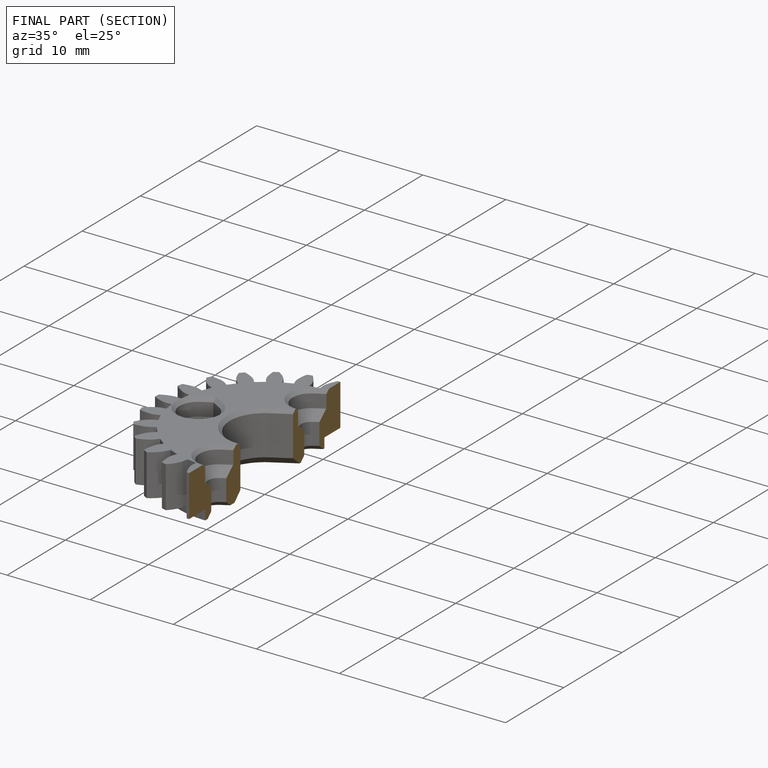
[diagram: finished part — half-section view (interior)]
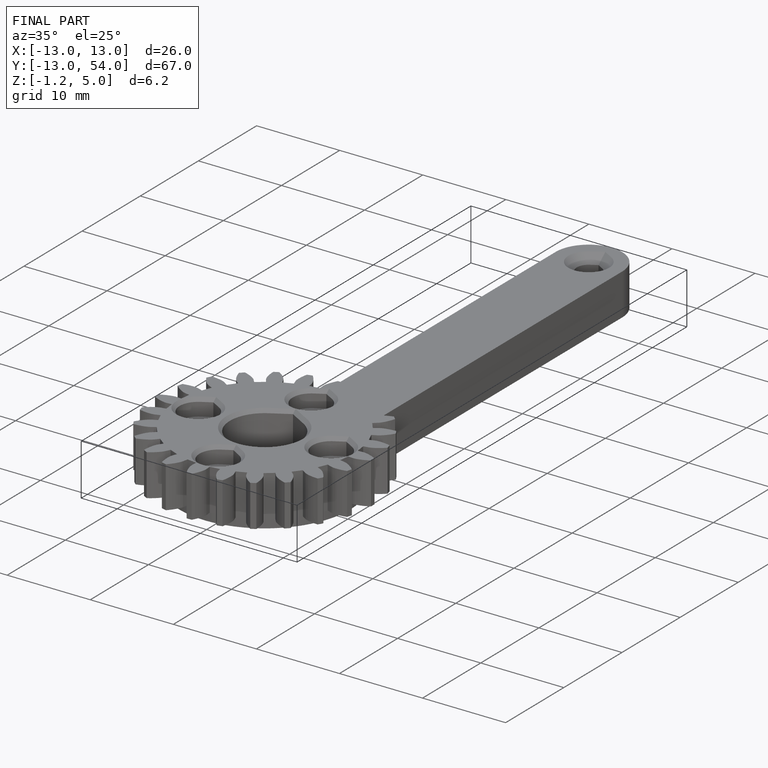
[diagram: finished part — iso view with bounding-box wireframe]
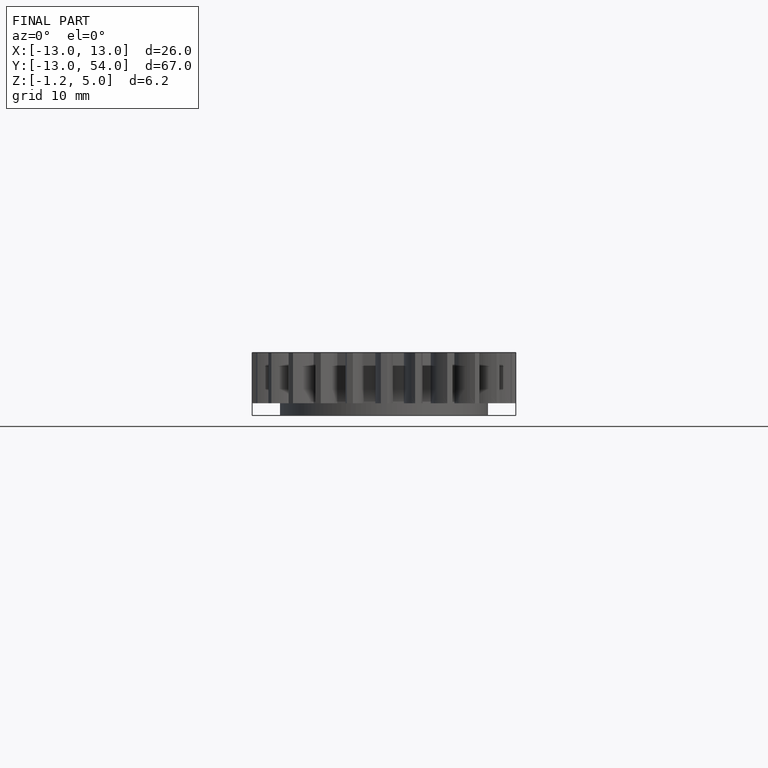
[diagram: finished part — front view with bounding-box wireframe]
